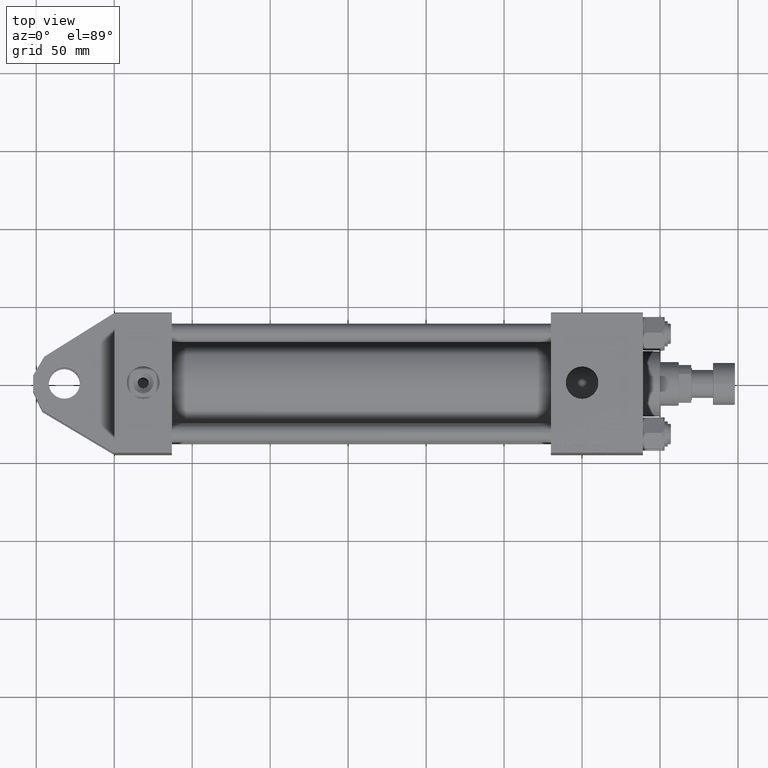
[diagram: clean part render]
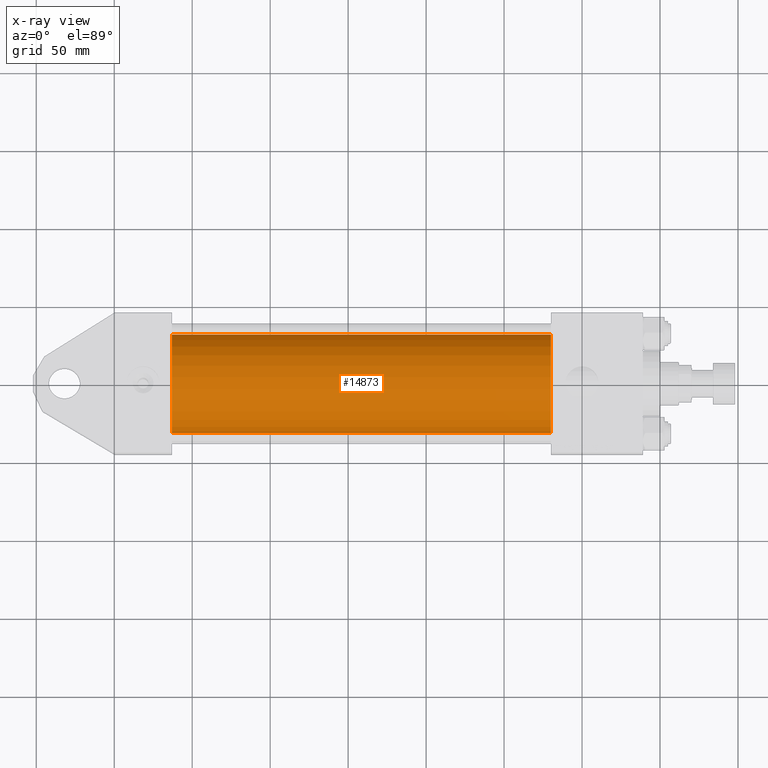
[diagram: x-ray — body ghosted, one internal face saturated and labeled with its STEP entity id]
A machine part, top view, then the same camera in x-ray: the body is ghosted and one INTERNAL B-rep face — a face not visible from any outside direction — is saturated and labeled: STEP entity #14873.
In plain terms, the highlighted cylindrical surface (partial cylindrical patch) has radius 31.5 mm, axis along (-1, -0, 0).
Its self-contained STEP definition (entity closure, byte-faithful):
#1301 = EDGE_CURVE ( 'NONE', #8684, #5400, #25484, .T. ) ;
#2241 = DIRECTION ( 'NONE',  ( -1.000000000000000000, -0.000000000000000000, -0.000000000000000000 ) ) ;
#2703 = ORIENTED_EDGE ( 'NONE', *, *, #13466, .F. ) ;
#2812 = CIRCLE ( 'NONE', #7044, 31.50000000000000000 ) ;
#5400 = VERTEX_POINT ( 'NONE', #50331 ) ;
#6355 = EDGE_CURVE ( 'NONE', #44264, #23706, #19409, .T. ) ;
#6858 = VECTOR ( 'NONE', #2241, 1000.000000000000000 ) ;
#7044 = AXIS2_PLACEMENT_3D ( 'NONE', #51417, #38997, #31850 ) ;
#8136 = CARTESIAN_POINT ( 'NONE',  ( 37.00000000000000000, 3.881904653605483521E-16, -31.50000000000000000 ) ) ;
#8684 = VERTEX_POINT ( 'NONE', #19778 ) ;
#10928 = DIRECTION ( 'NONE',  ( -1.000000000000000000, -0.000000000000000000, -0.000000000000000000 ) ) ;
#13466 = EDGE_CURVE ( 'NONE', #5400, #23706, #38340, .T. ) ;
#14873 = ADVANCED_FACE ( 'NONE', ( #42369 ), #18853, .F. ) ;
#15006 = CARTESIAN_POINT ( 'NONE',  ( 37.00000000000000000, -3.469446951953614189E-15, 0.000000000000000000 ) ) ;
#17736 = ORIENTED_EDGE ( 'NONE', *, *, #1301, .F. ) ;
#18714 = DIRECTION ( 'NONE',  ( 1.000000000000000000, 0.000000000000000000, 0.000000000000000000 ) ) ;
#18853 = CYLINDRICAL_SURFACE ( 'NONE', #26580, 31.50000000000000000 ) ;
#19409 = LINE ( 'NONE', #27066, #6858 ) ;
#19503 = DIRECTION ( 'NONE',  ( 0.000000000000000000, 0.000000000000000000, -1.000000000000000000 ) ) ;
#19778 = CARTESIAN_POINT ( 'NONE',  ( 279.9999999999999432, -3.469446951953614189E-15, 31.50000000000000000 ) ) ;
#21487 = AXIS2_PLACEMENT_3D ( 'NONE', #15006, #18714, #19503 ) ;
#21518 = CARTESIAN_POINT ( 'NONE',  ( 279.9999999999999432, -3.469446951953614189E-15, 31.50000000000000000 ) ) ;
#23706 = VERTEX_POINT ( 'NONE', #8136 ) ;
#25484 = LINE ( 'NONE', #21518, #29563 ) ;
#26580 = AXIS2_PLACEMENT_3D ( 'NONE', #39464, #10928, #31517 ) ;
#27066 = CARTESIAN_POINT ( 'NONE',  ( 279.9999999999999432, 3.881904653605483521E-16, -31.50000000000000000 ) ) ;
#28376 = EDGE_LOOP ( 'NONE', ( #51405, #43060, #2703, #17736 ) ) ;
#28418 = CARTESIAN_POINT ( 'NONE',  ( 279.9999999999999432, 3.881904653605483521E-16, -31.50000000000000000 ) ) ;
#29563 = VECTOR ( 'NONE', #49802, 1000.000000000000000 ) ;
#31517 = DIRECTION ( 'NONE',  ( 0.000000000000000000, 0.000000000000000000, 1.000000000000000000 ) ) ;
#31850 = DIRECTION ( 'NONE',  ( 0.000000000000000000, 0.000000000000000000, -1.000000000000000000 ) ) ;
#38340 = CIRCLE ( 'NONE', #21487, 31.50000000000000000 ) ;
#38997 = DIRECTION ( 'NONE',  ( 1.000000000000000000, 0.000000000000000000, 0.000000000000000000 ) ) ;
#39464 = CARTESIAN_POINT ( 'NONE',  ( 279.9999999999999432, -3.469446951953614189E-15, 0.000000000000000000 ) ) ;
#42369 = FACE_OUTER_BOUND ( 'NONE', #28376, .T. ) ;
#43060 = ORIENTED_EDGE ( 'NONE', *, *, #6355, .T. ) ;
#44156 = EDGE_CURVE ( 'NONE', #8684, #44264, #2812, .T. ) ;
#44264 = VERTEX_POINT ( 'NONE', #28418 ) ;
#49802 = DIRECTION ( 'NONE',  ( -1.000000000000000000, -0.000000000000000000, -0.000000000000000000 ) ) ;
#50331 = CARTESIAN_POINT ( 'NONE',  ( 37.00000000000000000, -3.469446951953614189E-15, 31.50000000000000000 ) ) ;
#51405 = ORIENTED_EDGE ( 'NONE', *, *, #44156, .T. ) ;
#51417 = CARTESIAN_POINT ( 'NONE',  ( 279.9999999999999432, -3.469446951953614189E-15, 0.000000000000000000 ) ) ;